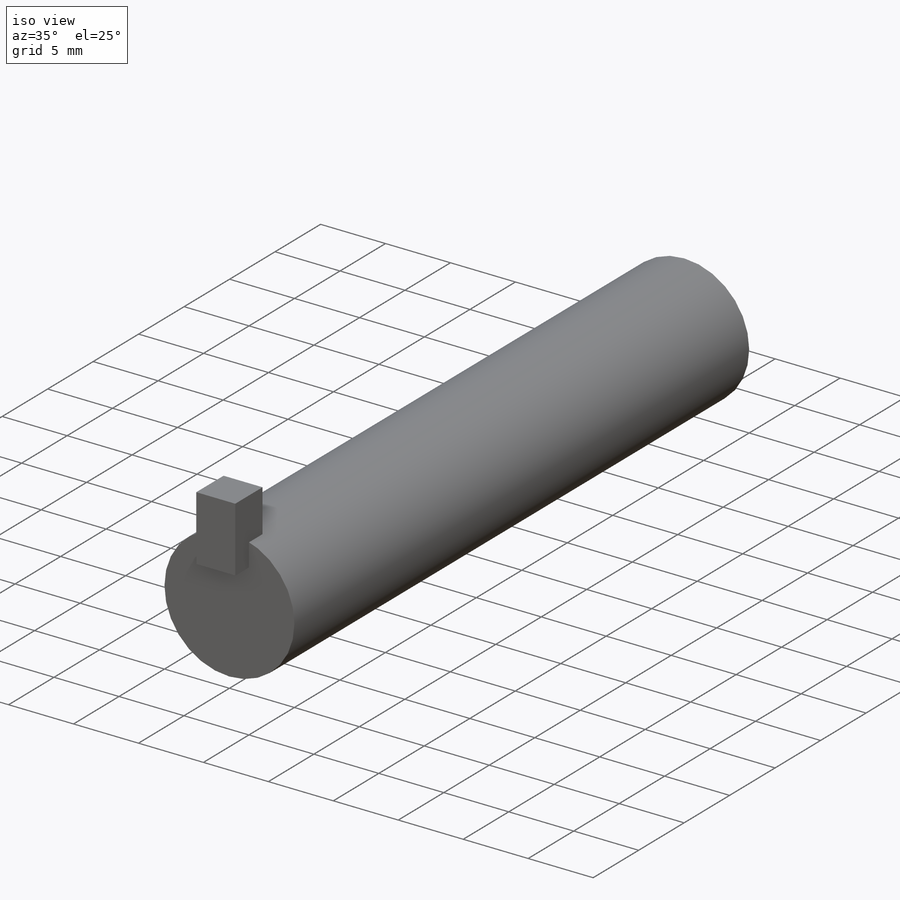
[diagram: iso view]
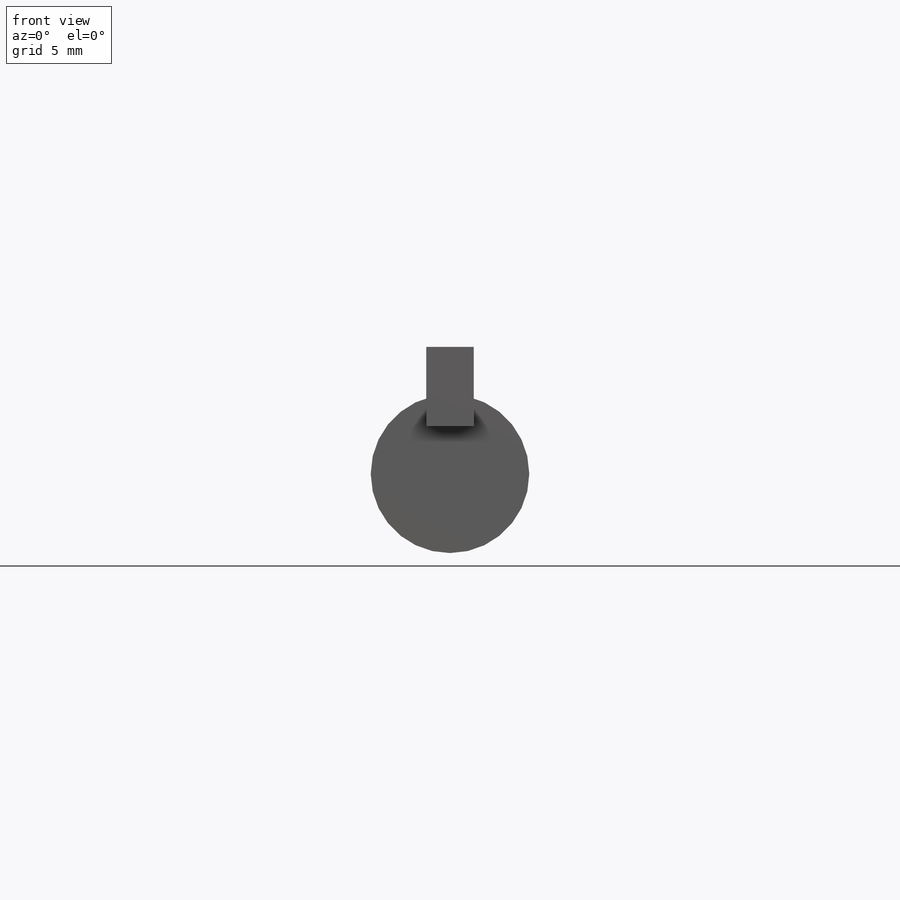
[diagram: front view]
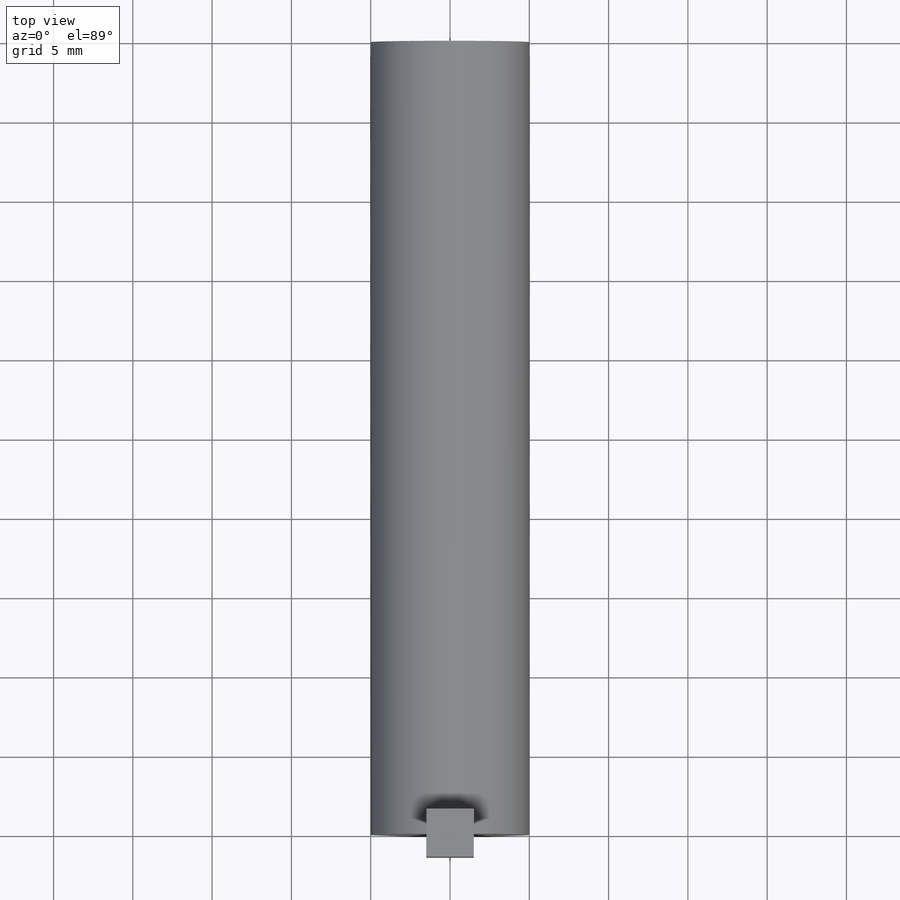
[diagram: top view]
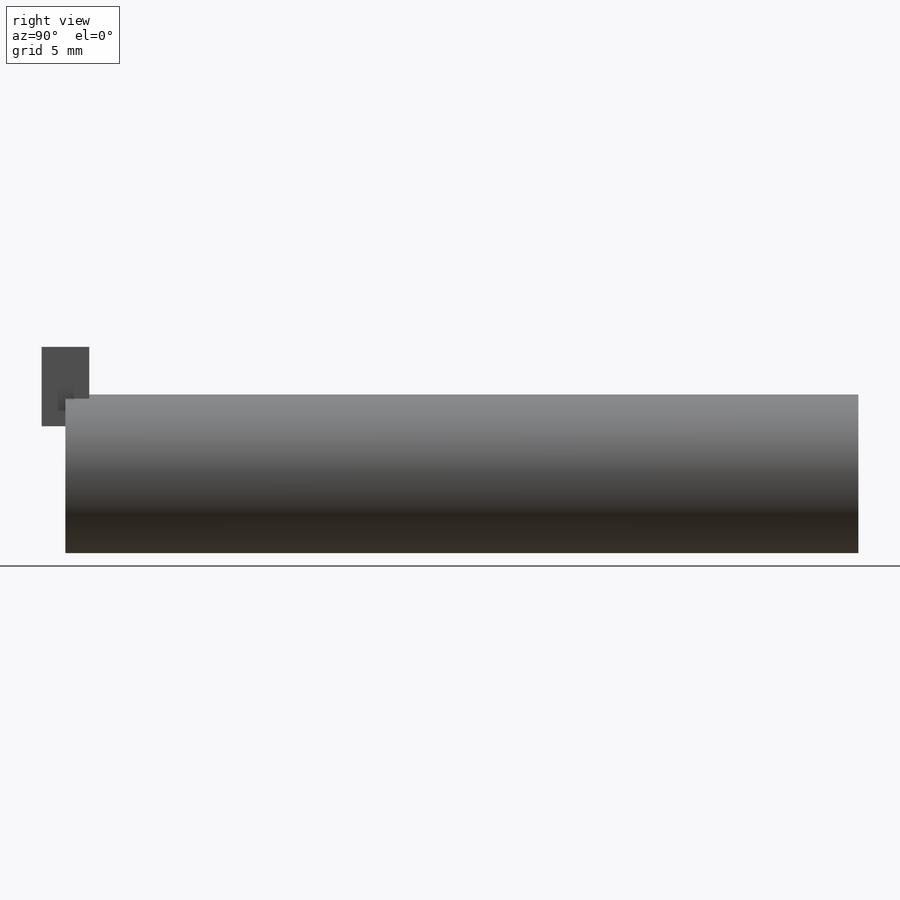
[diagram: right view]
SOLIDWORKS PART (.sldprt)
format: sldprt  version: not decoded by parser v0  size: 180,736 bytes
history: native  units: mm
features: sketch x5, plane x4, extrude x2, material x1, helix x1 (+9 scaffold rows collapsed)
feature tree (22):
  scaffold x9  (default folders/planes/origin — collapsed)
  material  "Material <nicht festgelegt>"
  plane  "Ebene vorne"
  plane  "Ebene oben"
  plane  "Ebene rechts"
  plane  "Ebene1"  Offset=5mm
  sketch  "Skizze1"  dims[D1=10.0mm]
  extrude  "Aufsatz-Linear austragen1"  Depth=50mm
  sketch  "Skizze4"
  helix  "Spirale/Helix1"  Pitch=45mm
  sketch  "Skizze2"  dims[c1.D1=~8.604503mm c1.D2=~71.776227mm c2.D1=3.0mm c2.D2=~71.776227mm c3.D2=5.0deg c3.D3=0.0mm]
  sketch  "Skizze6"  dims[D1=10.0mm]
  sketch  "Skizze8"  dims[D1=3.0mm D2=3.0mm]
  extrude  "Aufsatz-Linear austragen3"  Depth=3mm
decode coverage: 7 of 8 modeling features carry decoded parameters
note: ~ marks probable driven/reference dimensions
note: suppression state not decoded; provenance and decode notes live in map.json
